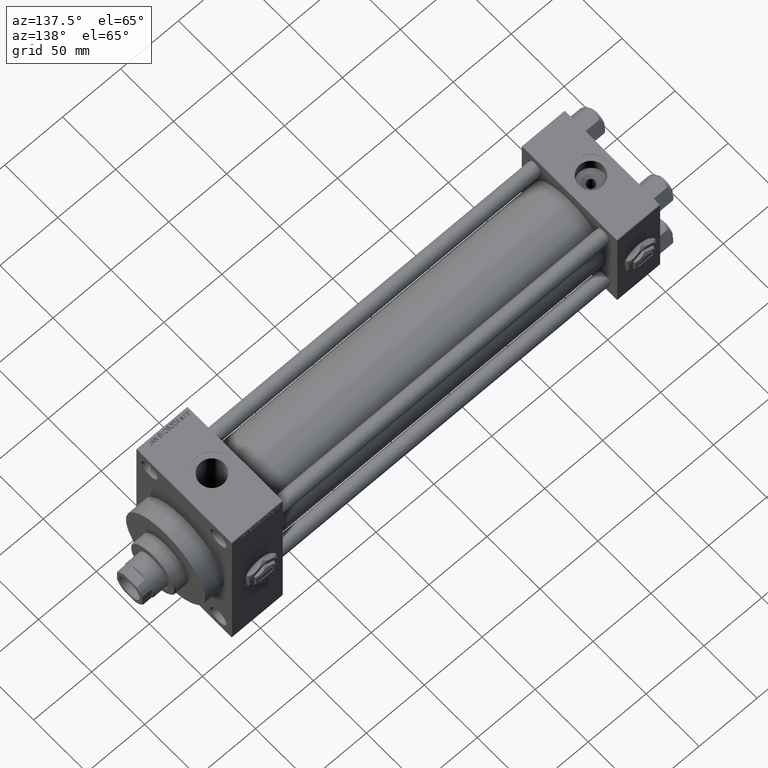
[diagram: clean part render]
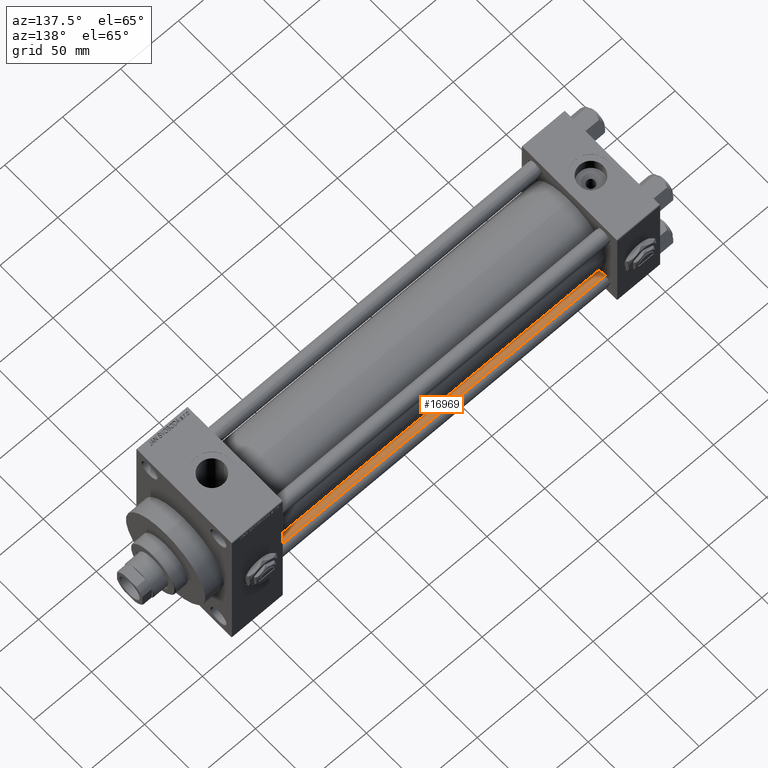
[diagram: same view with one face highlighted and labeled with its STEP entity id]
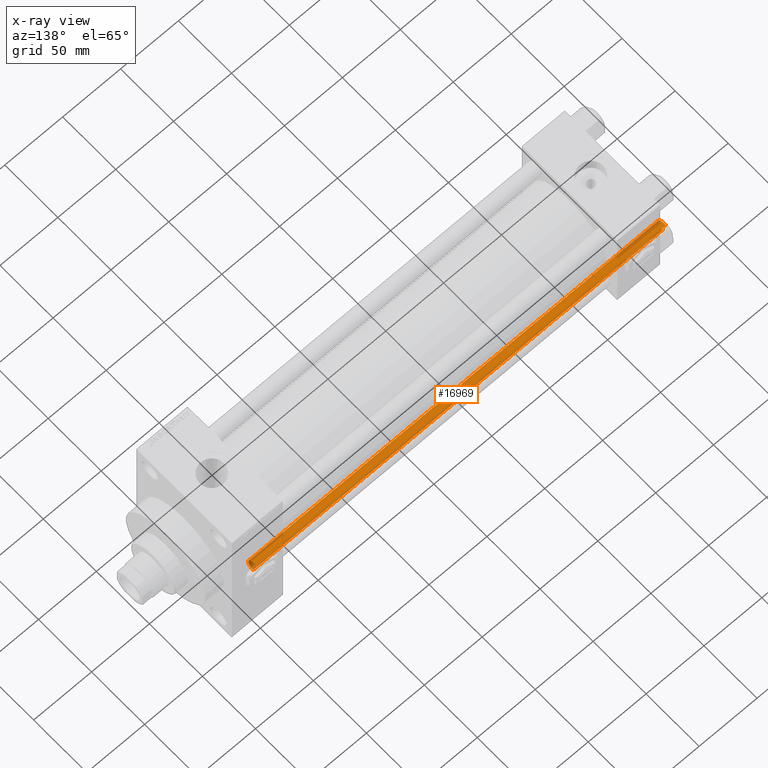
[diagram: x-ray of the same camera — body ghosted, the highlighted face saturated]
A machine part, auxiliary view. The second image highlights one B-rep face of the part: STEP entity #16969.
The next image is the same camera in x-ray: the body ghosted, the highlighted face saturated — about 8% of this face is hidden behind the body in this view.
In plain terms, the highlighted cylindrical surface (edge-blend (fillet) strip) has radius 6 mm, axis along (1, -0, 0).
Its self-contained STEP definition (entity closure, byte-faithful):
#177 = DIRECTION ( 'NONE',  ( -0.000000000000000000, -0.000000000000000000, -1.000000000000000000 ) ) ;
#6787 = DIRECTION ( 'NONE',  ( -0.000000000000000000, -0.000000000000000000, 1.000000000000000000 ) ) ;
#9061 = EDGE_CURVE ( 'NONE', #47118, #23879, #15546, .T. ) ;
#9906 = CARTESIAN_POINT ( 'NONE',  ( -6.000000000000000888, 0.000000000000000000, 0.5000000000001114664 ) ) ;
#13589 = EDGE_CURVE ( 'NONE', #23879, #15683, #28602, .T. ) ;
#13680 = CARTESIAN_POINT ( 'NONE',  ( 0.000000000000000000, 0.000000000000000000, 354.5000000000000000 ) ) ;
#14311 = EDGE_LOOP ( 'NONE', ( #29306, #20923, #39490, #22527 ) ) ;
#15013 = VECTOR ( 'NONE', #177, 1000.000000000000000 ) ;
#15546 = CIRCLE ( 'NONE', #22729, 6.000000000000000888 ) ;
#15683 = VERTEX_POINT ( 'NONE', #9906 ) ;
#15777 = EDGE_CURVE ( 'NONE', #47118, #32715, #30564, .T. ) ;
#16969 = ADVANCED_FACE ( 'NONE', ( #40841 ), #33108, .T. ) ;
#18094 = AXIS2_PLACEMENT_3D ( 'NONE', #36711, #6787, #29473 ) ;
#18908 = DIRECTION ( 'NONE',  ( -0.000000000000000000, -0.000000000000000000, -1.000000000000000000 ) ) ;
#20923 = ORIENTED_EDGE ( 'NONE', *, *, #9061, .T. ) ;
#21643 = DIRECTION ( 'NONE',  ( 1.000000000000000000, 0.000000000000000000, 0.000000000000000000 ) ) ;
#22527 = ORIENTED_EDGE ( 'NONE', *, *, #38938, .T. ) ;
#22729 = AXIS2_PLACEMENT_3D ( 'NONE', #13680, #48562, #21643 ) ;
#23879 = VERTEX_POINT ( 'NONE', #40381 ) ;
#26136 = CARTESIAN_POINT ( 'NONE',  ( 6.000000000000000888, 7.347880794884120722E-16, 0.5000000000001114664 ) ) ;
#26179 = AXIS2_PLACEMENT_3D ( 'NONE', #48823, #18908, #41337 ) ;
#28114 = CARTESIAN_POINT ( 'NONE',  ( -6.000000000000000888, 0.000000000000000000, 355.0000000000000000 ) ) ;
#28602 = LINE ( 'NONE', #28114, #34806 ) ;
#29306 = ORIENTED_EDGE ( 'NONE', *, *, #15777, .F. ) ;
#29473 = DIRECTION ( 'NONE',  ( 1.000000000000000000, 0.000000000000000000, 0.000000000000000000 ) ) ;
#30564 = LINE ( 'NONE', #42033, #15013 ) ;
#32715 = VERTEX_POINT ( 'NONE', #26136 ) ;
#32797 = CARTESIAN_POINT ( 'NONE',  ( 6.000000000000000888, 7.347880794884120722E-16, 354.5000000000000000 ) ) ;
#33108 = CYLINDRICAL_SURFACE ( 'NONE', #26179, 6.000000000000000888 ) ;
#33206 = CIRCLE ( 'NONE', #18094, 6.000000000000000888 ) ;
#34806 = VECTOR ( 'NONE', #43801, 1000.000000000000000 ) ;
#36711 = CARTESIAN_POINT ( 'NONE',  ( 0.000000000000000000, 0.000000000000000000, 0.5000000000001114664 ) ) ;
#38938 = EDGE_CURVE ( 'NONE', #15683, #32715, #33206, .T. ) ;
#39490 = ORIENTED_EDGE ( 'NONE', *, *, #13589, .T. ) ;
#40381 = CARTESIAN_POINT ( 'NONE',  ( -6.000000000000000888, 0.000000000000000000, 354.5000000000000000 ) ) ;
#40841 = FACE_OUTER_BOUND ( 'NONE', #14311, .T. ) ;
#41337 = DIRECTION ( 'NONE',  ( -1.000000000000000000, 0.000000000000000000, 0.000000000000000000 ) ) ;
#42033 = CARTESIAN_POINT ( 'NONE',  ( 6.000000000000000888, 7.347880794884120722E-16, 355.0000000000000000 ) ) ;
#43801 = DIRECTION ( 'NONE',  ( -0.000000000000000000, -0.000000000000000000, -1.000000000000000000 ) ) ;
#47118 = VERTEX_POINT ( 'NONE', #32797 ) ;
#48562 = DIRECTION ( 'NONE',  ( 0.000000000000000000, 0.000000000000000000, -1.000000000000000000 ) ) ;
#48823 = CARTESIAN_POINT ( 'NONE',  ( 0.000000000000000000, 0.000000000000000000, 355.0000000000000000 ) ) ;